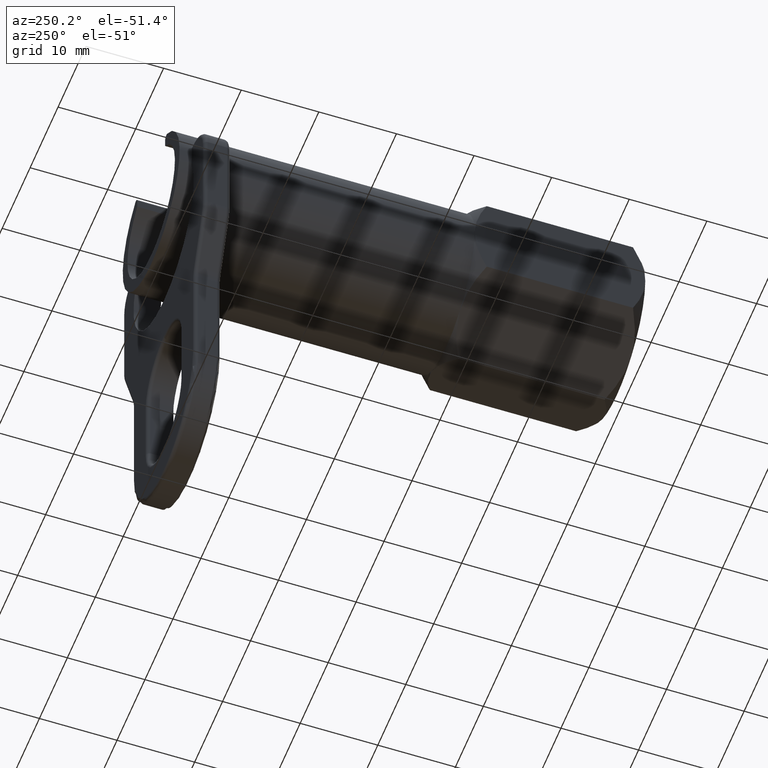
[diagram: clean part render]
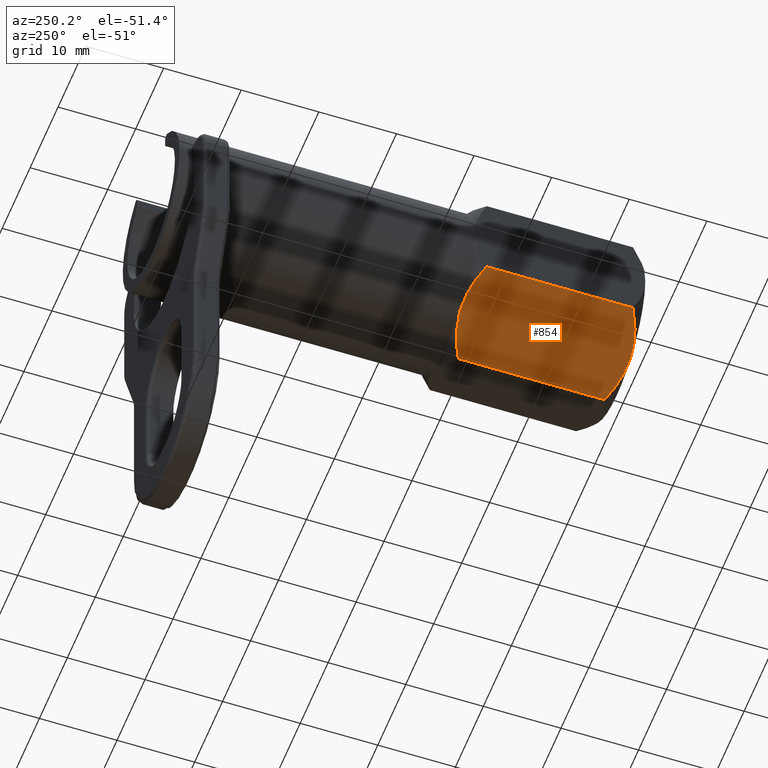
[diagram: same view with one face highlighted and labeled with its STEP entity id]
A machine part, auxiliary view. The second image highlights one B-rep face of the part: STEP entity #854.
In plain terms, the highlighted planar face has unit normal (0.5, 0, 0.866).
Its self-contained STEP definition (entity closure, byte-faithful):
#542 = VERTEX_POINT ( 'NONE', #1827 ) ;
#794 = ORIENTED_EDGE ( 'NONE', *, *, #853, .T. ) ;
#795 = ORIENTED_EDGE ( 'NONE', *, *, #796, .F. ) ;
#796 = EDGE_CURVE ( 'NONE', #797, #542, #2305, .T. ) ;
#797 = VERTEX_POINT ( 'NONE', #2304 ) ;
#798 = ORIENTED_EDGE ( 'NONE', *, *, #799, .F. ) ;
#799 = EDGE_CURVE ( 'NONE', #800, #797, #2352, .T. ) ;
#800 = VERTEX_POINT ( 'NONE', #2351 ) ;
#801 = ORIENTED_EDGE ( 'NONE', *, *, #905, .F. ) ;
#845 = VERTEX_POINT ( 'NONE', #2445 ) ;
#853 = EDGE_CURVE ( 'NONE', #845, #542, #2426, .T. ) ;
#854 = ADVANCED_FACE ( 'NONE', ( #2416 ), #2427, .F. ) ;
#855 = EDGE_LOOP ( 'NONE', ( #856, #794, #795, #798, #801 ) ) ;
#856 = ORIENTED_EDGE ( 'NONE', *, *, #877, .F. ) ;
#877 = EDGE_CURVE ( 'NONE', #845, #878, #2527, .T. ) ;
#878 = VERTEX_POINT ( 'NONE', #2529 ) ;
#905 = EDGE_CURVE ( 'NONE', #878, #800, #2597, .T. ) ;
#1827 = CARTESIAN_POINT ( 'NONE',  ( -2.484287071791716600E-015, 1.574201505532840700, -11.75000000000000000 ) ) ;
#2298 = CARTESIAN_POINT ( 'NONE',  ( -2.484287071791716600E-015, 1.574201505532840700, -11.75000000000000000 ) ) ;
#2299 = CARTESIAN_POINT ( 'NONE',  ( -0.7969320373023054400, 1.114092579270435000, -11.28989107373768000 ) ) ;
#2300 = CARTESIAN_POINT ( 'NONE',  ( -1.617225213573366200, 0.7194149476397261300, -10.81629458760317200 ) ) ;
#2301 = CARTESIAN_POINT ( 'NONE',  ( -3.332968175804332100, 0.1562527235853020400, -9.825709926498914700 ) ) ;
#2302 = CARTESIAN_POINT ( 'NONE',  ( -4.202909619813882000, 3.140798168418944500E-015, -9.323448999620787000 ) ) ;
#2303 = CARTESIAN_POINT ( 'NONE',  ( -5.087899247233575100, 0.0000000000000000000, -8.812500000000000000 ) ) ;
#2304 = CARTESIAN_POINT ( 'NONE',  ( -5.087899247233575100, 0.0000000000000000000, -8.812500000000000000 ) ) ;
#2305 = B_SPLINE_CURVE_WITH_KNOTS ( 'NONE', 3,
 ( #2303, #2302, #2301, #2300, #2299, #2298 ),
 .UNSPECIFIED., .F., .F.,
 ( 4, 2, 4 ),
 ( 0.006090224175852789800, 0.009113880782170782600, 0.01213753738848877400 ),
 .UNSPECIFIED. ) ;
#2343 = CARTESIAN_POINT ( 'NONE',  ( -5.087899247233575100, 0.0000000000000000000, -8.812500000000000000 ) ) ;
#2344 = CARTESIAN_POINT ( 'NONE',  ( -5.533515330426927100, 2.997931944648720500E-015, -8.555223434413097300 ) ) ;
#2345 = CARTESIAN_POINT ( 'NONE',  ( -5.985798727364782600, 0.04038802588875740200, -8.294097493441025600 ) ) ;
#2346 = CARTESIAN_POINT ( 'NONE',  ( -6.864136812831650200, 0.1925280614143518600, -7.786988763357230800 ) ) ;
#2347 = CARTESIAN_POINT ( 'NONE',  ( -7.294167563710687800, 0.3036266470950345100, -7.538710393577400900 ) ) ;
#2348 = CARTESIAN_POINT ( 'NONE',  ( -8.562029883143507500, 0.7221333754503004300, -6.806709742157481800 ) ) ;
#2349 = CARTESIAN_POINT ( 'NONE',  ( -9.377942797943775900, 1.113559304370596500, -6.335642201162249500 ) ) ;
#2350 = CARTESIAN_POINT ( 'NONE',  ( -10.17579849446715400, 1.574201505532843800, -5.875000000000003600 ) ) ;
#2351 = CARTESIAN_POINT ( 'NONE',  ( -10.17579849446715400, 1.574201505532843800, -5.875000000000003600 ) ) ;
#2352 = B_SPLINE_CURVE_WITH_KNOTS ( 'NONE', 3,
 ( #2350, #2349, #2348, #2347, #2346, #2345, #2344, #2343 ),
 .UNSPECIFIED., .F., .F.,
 ( 4, 2, 2, 4 ),
 ( 2.544312011329961900E-007, 0.003045239303526960400, 0.004567731739689875500, 0.006090224175852789800 ),
 .UNSPECIFIED. ) ;
#2416 = FACE_OUTER_BOUND ( 'NONE', #855, .T. ) ;
#2417 = VECTOR ( 'NONE', #2424, 1000.000000000000000 ) ;
#2424 = DIRECTION ( 'NONE',  ( 0.0000000000000000000, -1.000000000000000000, 0.0000000000000000000 ) ) ;
#2425 = CARTESIAN_POINT ( 'NONE',  ( -1.713184197706433300E-015, 22.00000000000000000, -11.75000000000000000 ) ) ;
#2426 = LINE ( 'NONE', #2425, #2417 ) ;
#2427 = PLANE ( 'NONE',  #2475 ) ;
#2445 = CARTESIAN_POINT ( 'NONE',  ( -3.265353318088399400E-015, 20.42569849446715600, -11.74999999999999800 ) ) ;
#2472 = DIRECTION ( 'NONE',  ( 0.8660254037844387100, 0.0000000000000000000, -0.4999999999999998300 ) ) ;
#2473 = DIRECTION ( 'NONE',  ( 0.4999999999999998300, 0.0000000000000000000, 0.8660254037844387100 ) ) ;
#2474 = CARTESIAN_POINT ( 'NONE',  ( -1.713184197706433300E-015, 22.00000000000000000, -11.75000000000000000 ) ) ;
#2475 = AXIS2_PLACEMENT_3D ( 'NONE', #2474, #2473, #2472 ) ;
#2514 = CARTESIAN_POINT ( 'NONE',  ( -10.17579849446715600, 20.42569849446715200, -5.875000000000002700 ) ) ;
#2515 = CARTESIAN_POINT ( 'NONE',  ( -9.376055757952809000, 20.88743017867625100, -6.336731684209009800 ) ) ;
#2516 = CARTESIAN_POINT ( 'NONE',  ( -8.552605870209212900, 21.28334184525625600, -6.812150698561942400 ) ) ;
#2517 = CARTESIAN_POINT ( 'NONE',  ( -6.830643081799315100, 21.84673990741154300, -7.806326377984913000 ) ) ;
#2518 = CARTESIAN_POINT ( 'NONE',  ( -5.957490270369979700, 22.00205709960748400, -8.310441388707316100 ) ) ;
#2519 = CARTESIAN_POINT ( 'NONE',  ( -4.625008990183188100, 21.99878697563901000, -9.079749814513300900 ) ) ;
#2520 = CARTESIAN_POINT ( 'NONE',  ( -4.174430950266424700, 21.95756947459477000, -9.339891167150179600 ) ) ;
#2521 = CARTESIAN_POINT ( 'NONE',  ( -3.299551543909824400, 21.80449582049291000, -9.845003027918620500 ) ) ;
#2522 = CARTESIAN_POINT ( 'NONE',  ( -2.871167819921308000, 21.69324594343584100, -10.09233048627984500 ) ) ;
#2523 = CARTESIAN_POINT ( 'NONE',  ( -1.608056295562972000, 21.27501473678025000, -10.82158826488464600 ) ) ;
#2524 = CARTESIAN_POINT ( 'NONE',  ( -0.7950614497134916900, 20.88472743648153000, -11.29097105798562200 ) ) ;
#2525 = CARTESIAN_POINT ( 'NONE',  ( -3.265353318088399400E-015, 20.42569849446715600, -11.74999999999999800 ) ) ;
#2527 = B_SPLINE_CURVE_WITH_KNOTS ( 'NONE', 3,
 ( #2525, #2524, #2523, #2522, #2521, #2520, #2519, #2518, #2517, #2516, #2515, #2514 ),
 .UNSPECIFIED., .F., .F.,
 ( 4, 2, 2, 2, 2, 4 ),
 ( 2.544312011346661100E-007, 0.003034575170523043900, 0.004551735540183999400, 0.006068895909844955800, 0.009103216649166868600, 0.01213753738848878100 ),
 .UNSPECIFIED. ) ;
#2529 = CARTESIAN_POINT ( 'NONE',  ( -10.17579849446715600, 20.42569849446715200, -5.875000000000002700 ) ) ;
#2594 = DIRECTION ( 'NONE',  ( 0.0000000000000000000, -1.000000000000000000, 0.0000000000000000000 ) ) ;
#2595 = VECTOR ( 'NONE', #2594, 1000.000000000000000 ) ;
#2596 = CARTESIAN_POINT ( 'NONE',  ( -10.17579849446715400, 22.00000000000000000, -5.875000000000002700 ) ) ;
#2597 = LINE ( 'NONE', #2596, #2595 ) ;